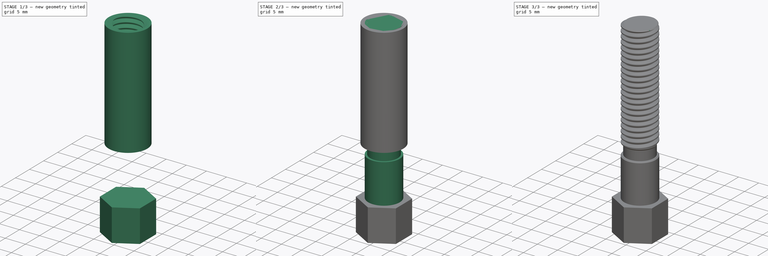
[diagram: build sequence overview — one tinted view per stage of 3, left to right]
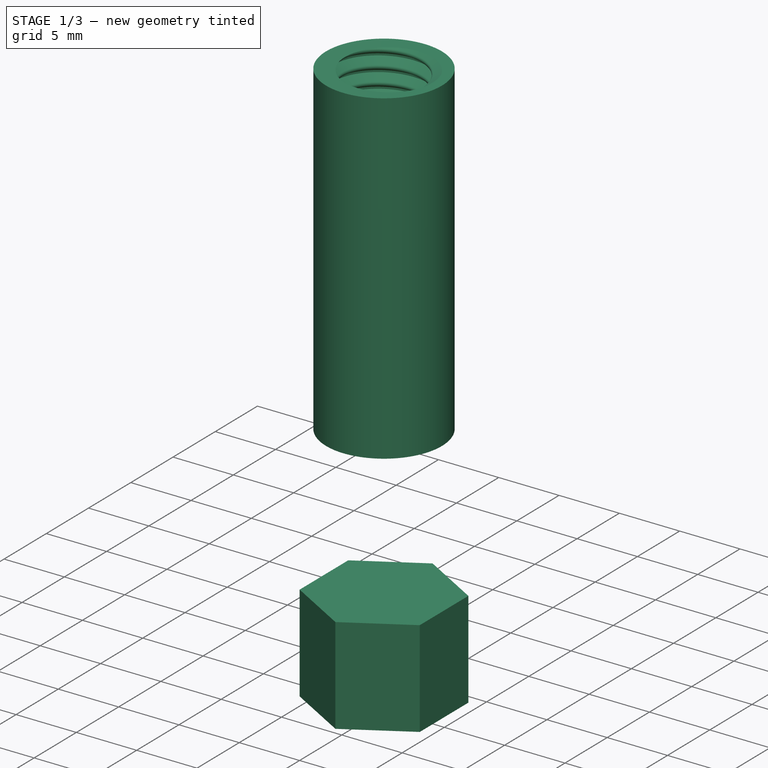
[diagram: stage 1 of 3 — iso view after this stage's code; geometry added in this stage tinted green]
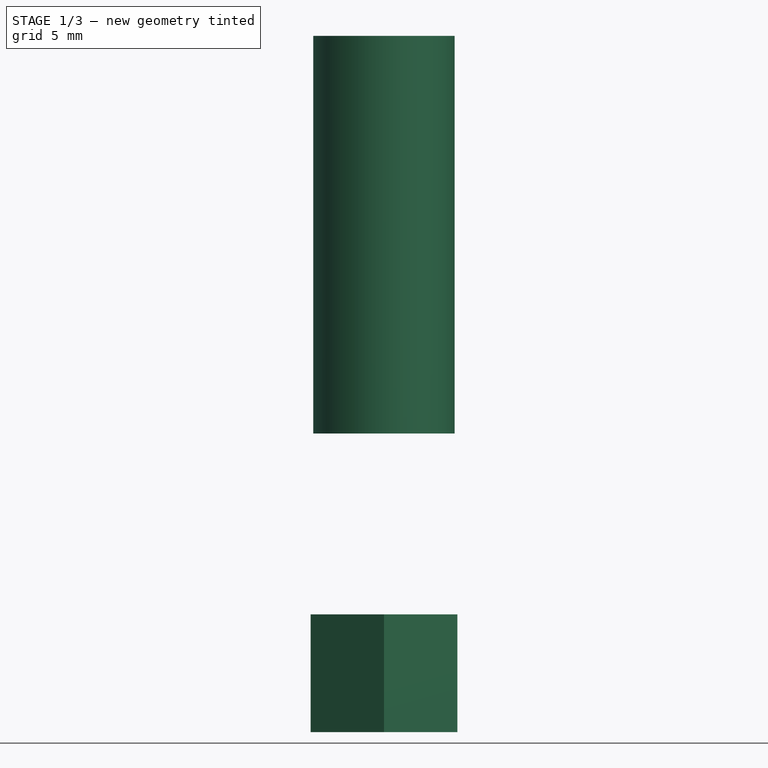
[diagram: stage 1 of 3 — front view after this stage's code; geometry added in this stage tinted green]
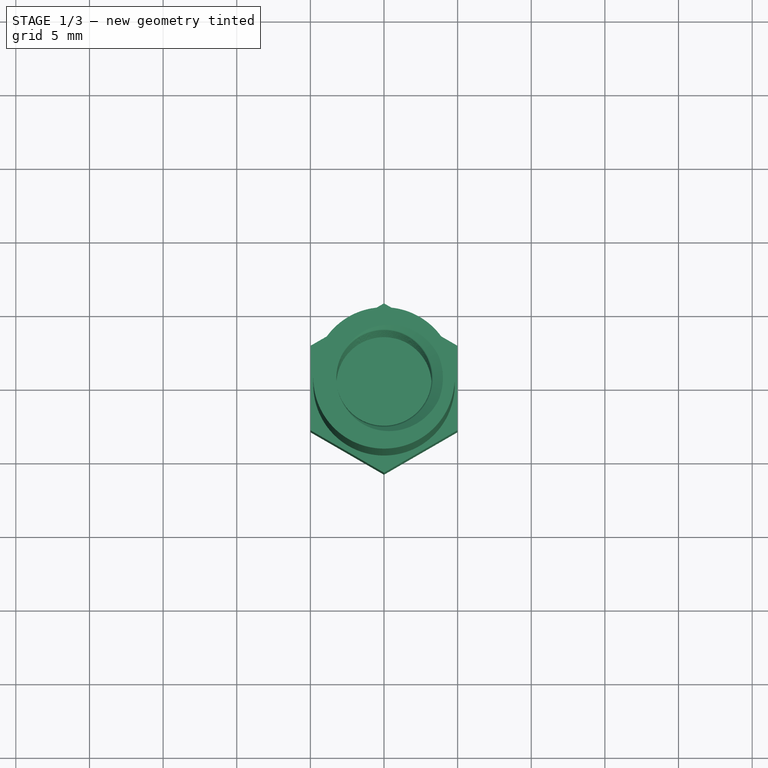
[diagram: stage 1 of 3 — top view after this stage's code; geometry added in this stage tinted green]
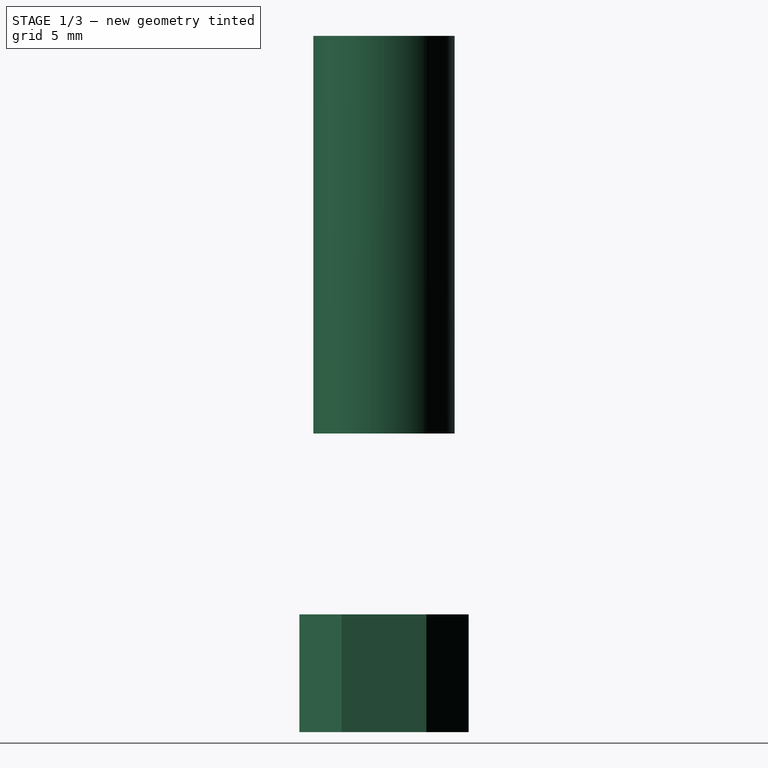
[diagram: stage 1 of 3 — right view after this stage's code; geometry added in this stage tinted green]
FCSTD DOCUMENT  (FreeCAD 1.0R39285 (Git))
Label: HindgeBolt
License: All rights reserved
LicenseURL: https://en.wikipedia.org/wiki/All_rights_reserved
objects: PartDesign::SubShapeBinder×4, PartDesign::Pad×4, Sketcher::SketchObject×1, PartDesign::Chamfer×1, PartDesign::Body×1, Part::FeaturePython×1, Part::Cut×1
note: 24 computed .brp shape members not serialized (recipe doc carries the construction recipe); baked Part::Feature solids carry a one-line shape summary decoded from their .brp

FEATURE [Sketcher::SketchObject] Sketch
  ArcFitTolerance = 1e-06
  FullyConstrained = true
  MakeInternals = false
  sketch-geometry (9):
    g0: LineSegment StartX=0 StartY=5.75 StartZ=0 EndX=-4.97965 EndY=2.875 EndZ=0
    g1: LineSegment StartX=-4.97965 StartY=2.875 StartZ=0 EndX=-4.97965 EndY=-2.875 EndZ=0
    g2: LineSegment StartX=-4.97965 StartY=-2.875 StartZ=0 EndX=0 EndY=-5.75 EndZ=0
    g3: LineSegment StartX=0 StartY=-5.75 StartZ=0 EndX=4.97965 EndY=-2.875 EndZ=0
    g4: LineSegment StartX=4.97965 StartY=-2.875 StartZ=0 EndX=4.97965 EndY=2.875 EndZ=0
    g5: LineSegment StartX=4.97965 StartY=2.875 StartZ=0 EndX=0 EndY=5.75 EndZ=0
    g6: Circle [constr] CenterX=0 CenterY=0 CenterZ=0 NormalX=0 NormalY=0 NormalZ=1 AngleXU=0 Radius=5.75
    g7: Circle CenterX=0 CenterY=0 CenterZ=0 NormalX=0 NormalY=0 NormalZ=1 AngleXU=0 Radius=3.93
    g8: Circle CenterX=0 CenterY=0 CenterZ=0 NormalX=0 NormalY=0 NormalZ=1 AngleXU=0 Radius=3.43
  constraints (20):
    c: Coincident(g0,g1)
    c: Coincident(g1,g2)
    c: Coincident(g2,g3)
    c: Coincident(g3,g4)
    c: Coincident(g4,g5)
    c: Coincident(g5,g0)
    c: Equal(g0, g1-g5) x5
    c: PointOnObject(g0,g6)
    c: PointOnObject(g1,g6)
    c: PointOnObject(g2,g6)
    c: PointOnObject(g3,g6)
    c: PointOnObject(g4,g6)
    c: PointOnObject(g5,g6)
    c: Coincident(g6,g-1)
    c: PointOnObject(g5,g-2)
    c: Diameter(g6) = 11.5
    c: Coincident(g7,g6)
    c: Coincident(g8,g6)
    c: Diameter(g7) = 7.86
    c: Diameter(g8) = 6.86
FEATURE [PartDesign::SubShapeBinder] Binder003
  BindCopyOnChange = 0
  BindMode = 0
  ClaimChildren = false
  Context = -> Body [Binder003.]
  Fuse = false
  MakeFace = true
  OffsetFill = false
  OffsetIntersection = false
  OffsetJoinType = 0
  OffsetOpenResult = false
  PartialLoad = false
  Refine = true
  Relative = true
  _Version = 2
FEATURE [PartDesign::Pad] Pad
  Direction = (0,0,1)
  Length = 8
  Length2 = 10
  Profile = -> Binder003
  Refine = true
  Suppressed = false
  Type = 0
FEATURE [PartDesign::Body] Body  label="Hindge Bolt - Base"
  AllowCompound = false
  Group = -> [Binder003,Pad,Binder,Pad001,Binder004,Pad002,Binder005,Pad003,Chamfer]
  Origin = -> Origin
  Tip = -> Chamfer
FEATURE [Part::FeaturePython] ScrewDie  label="M8x27-ScrewDie"  # WARN: FeaturePython — macro-defined, semantics opaque (R4)
  Diameter = 9
  DiameterCustom = 8
  Invert = false
  LeftHanded = false
  Length = 27
  MatchOuter = false
  OffsetAngle = 0
  PitchCustom = 1
  Placement = pos=(0,0,47.28) rot=(0,0,1;0rad)
  Thread = true
  Type = 0
  expr: .Placement.Base.z = 8 + 9.78 + 2.5 + 27
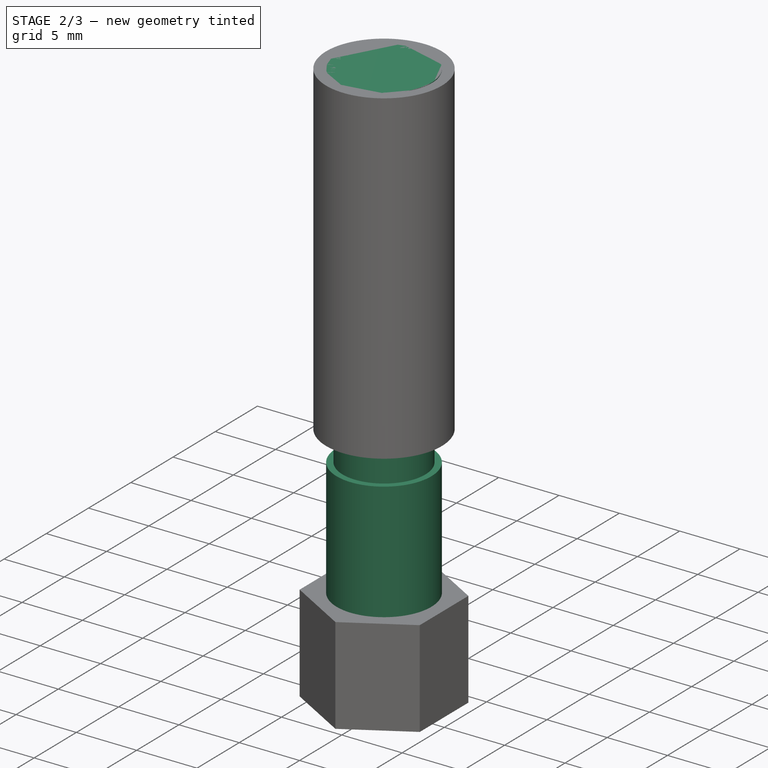
[diagram: stage 2 of 3 — iso view after this stage's code; geometry added in this stage tinted green]
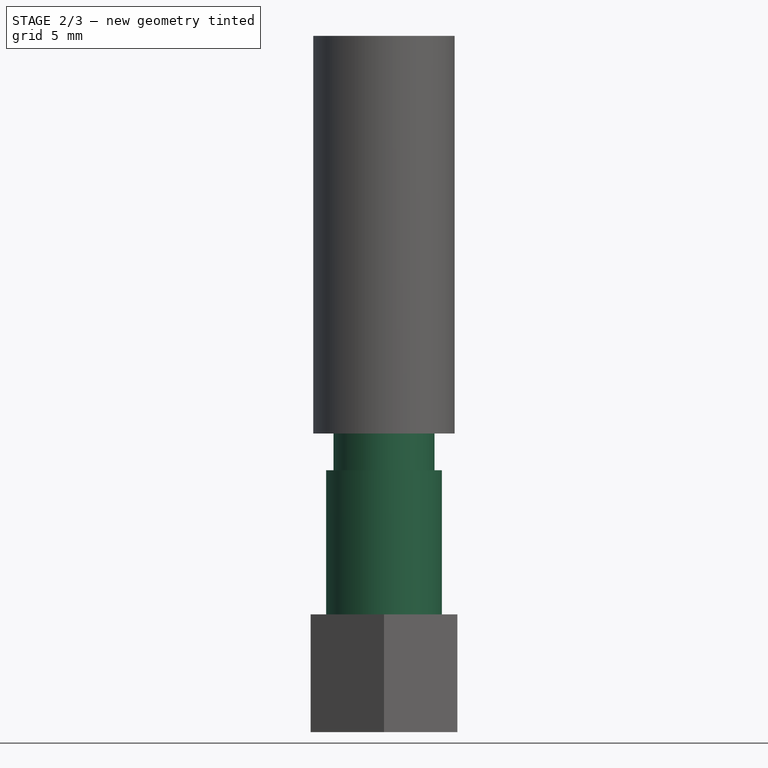
[diagram: stage 2 of 3 — front view after this stage's code; geometry added in this stage tinted green]
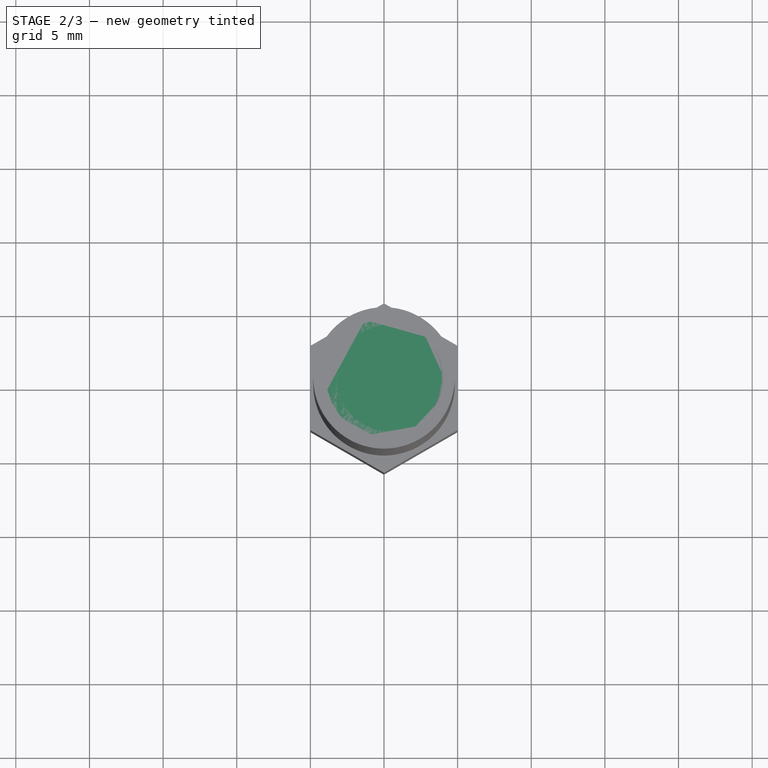
[diagram: stage 2 of 3 — top view after this stage's code; geometry added in this stage tinted green]
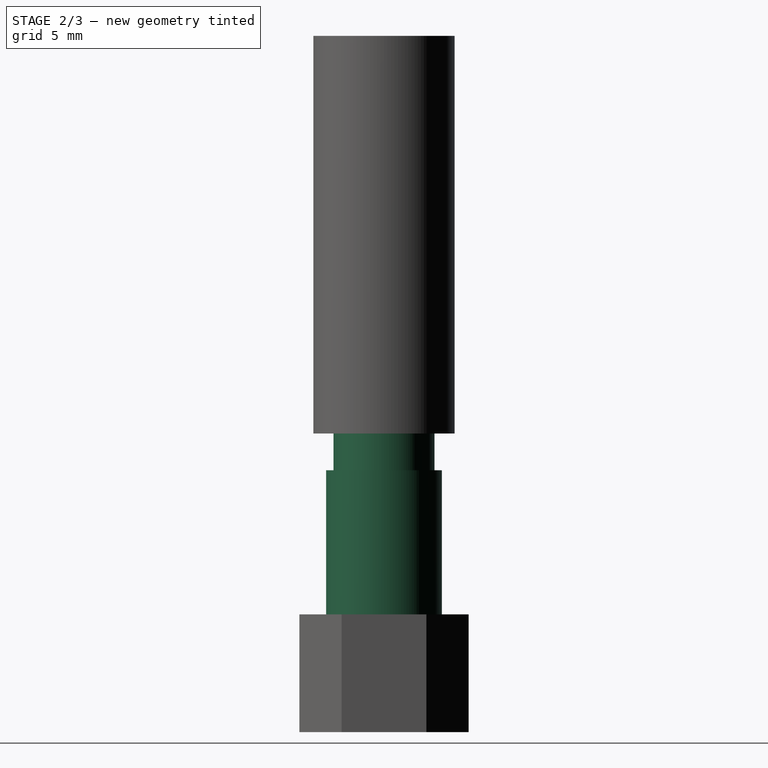
[diagram: stage 2 of 3 — right view after this stage's code; geometry added in this stage tinted green]
FEATURE [PartDesign::SubShapeBinder] Binder
  BindCopyOnChange = 0
  BindMode = 0
  ClaimChildren = false
  Context = -> Body [Binder.]
  Fuse = false
  MakeFace = true
  OffsetFill = false
  OffsetIntersection = false
  OffsetJoinType = 0
  OffsetOpenResult = false
  PartialLoad = false
  Placement = pos=(0,0,8) rot=(0,0,1;0rad)
  Refine = true
  Relative = true
  Support = -> [Sketch[Edge7]]
  _Version = 2
FEATURE [PartDesign::Pad] Pad001
  BaseFeature = -> Pad
  Direction = (0,0,1)
  Length = 9.78
  Length2 = 10
  Profile = -> Binder
  Refine = true
  Suppressed = false
  Type = 0
FEATURE [PartDesign::SubShapeBinder] Binder004
  BindCopyOnChange = 0
  BindMode = 0
  ClaimChildren = false
  Context = -> Body [Binder004.]
  Fuse = false
  MakeFace = true
  OffsetFill = false
  OffsetIntersection = false
  OffsetJoinType = 0
  OffsetOpenResult = false
  PartialLoad = false
  Placement = pos=(0,0,17.78) rot=(0,0,1;0rad)
  Refine = true
  Relative = true
  Support = -> [Sketch[Edge8]]
  _Version = 2
  expr: .Placement.Base.z = 9.78 + 8
FEATURE [PartDesign::Pad] Pad002
  BaseFeature = -> Pad001
  Direction = (0,0,1)
  Length = 2.5
  Length2 = 10
  Profile = -> Binder004
  Refine = true
  Suppressed = false
  Type = 0
FEATURE [PartDesign::SubShapeBinder] Binder005
  BindCopyOnChange = 0
  BindMode = 0
  ClaimChildren = false
  Context = -> Body [Binder005.]
  Fuse = false
  MakeFace = true
  OffsetFill = false
  OffsetIntersection = false
  OffsetJoinType = 0
  OffsetOpenResult = false
  PartialLoad = false
  Placement = pos=(0,0,20.28) rot=(0,0,1;0rad)
  Refine = true
  Relative = true
  Support = -> [Sketch[Edge7]]
  _Version = 2
  expr: .Placement.Base.z = 9.78 + 8 + 2.5
FEATURE [PartDesign::Pad] Pad003
  BaseFeature = -> Pad002
  Direction = (0,0,1)
  Length = 27
  Length2 = 10
  Profile = -> Binder005
  Refine = true
  Suppressed = false
  Type = 0
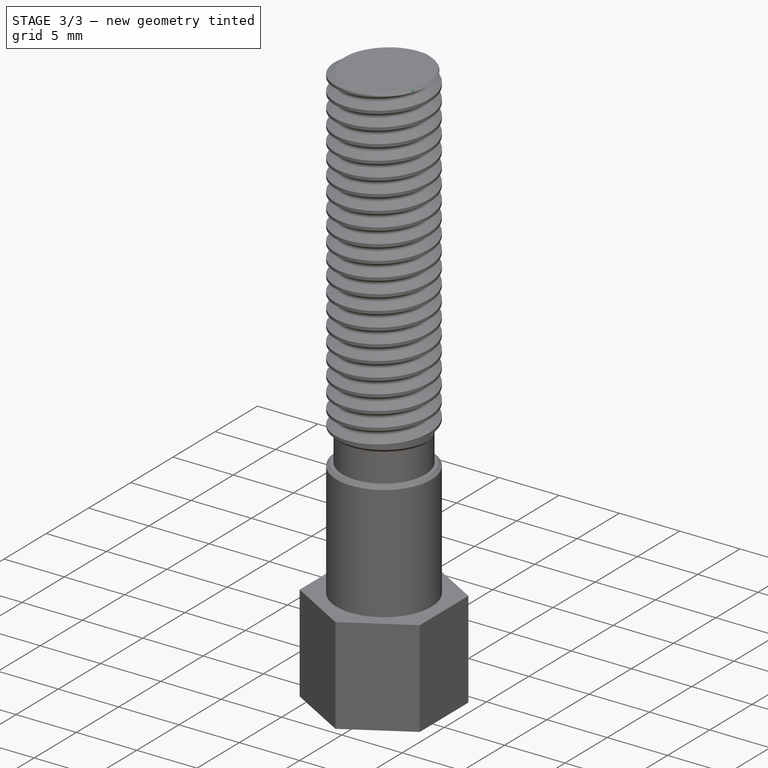
[diagram: stage 3 of 3 — iso view after this stage's code; geometry added in this stage tinted green]
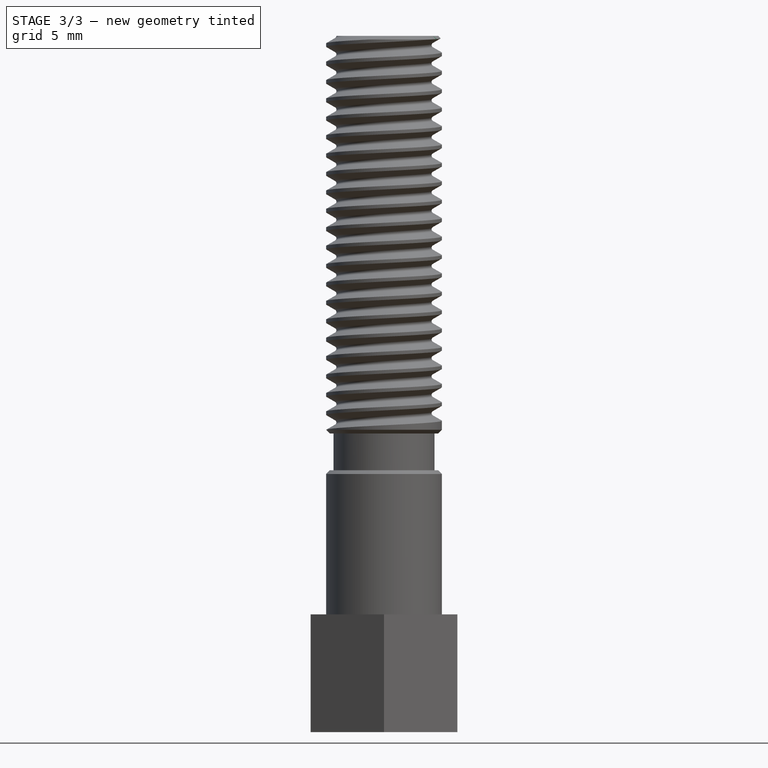
[diagram: stage 3 of 3 — front view after this stage's code; geometry added in this stage tinted green]
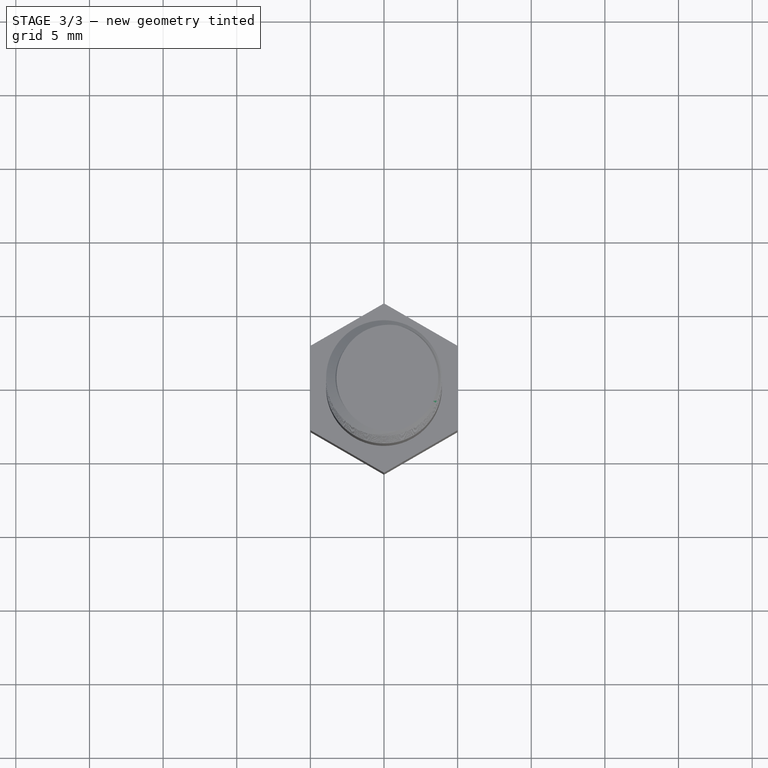
[diagram: stage 3 of 3 — top view after this stage's code; geometry added in this stage tinted green]
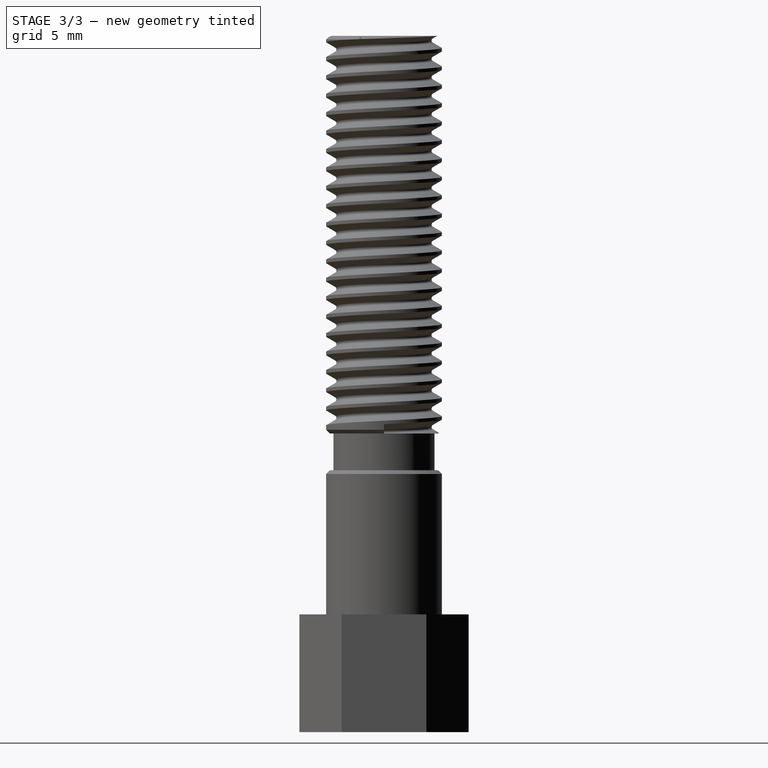
[diagram: stage 3 of 3 — right view after this stage's code; geometry added in this stage tinted green]
FEATURE [PartDesign::Chamfer] Chamfer
  Angle = 45
  Base = -> Pad003 [Edge27,Edge25,Edge21]
  BaseFeature = -> Pad003
  ChamferType = 0
  FlipDirection = false
  Refine = true
  Size = 0.25
  Size2 = 1
  SupportTransform = false
  Suppressed = false
  UseAllEdges = false
FEATURE [Part::Cut] Cut  label="Hindge Bolt"
  Base = -> Body
  Refine = true
  Tool = -> ScrewDie
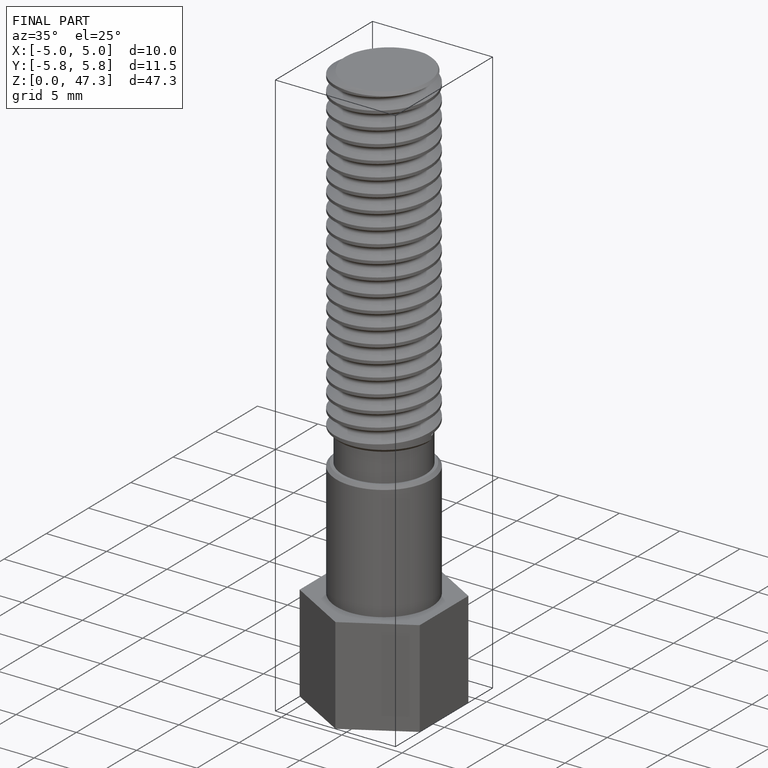
[diagram: finished part — iso view with bounding-box wireframe]
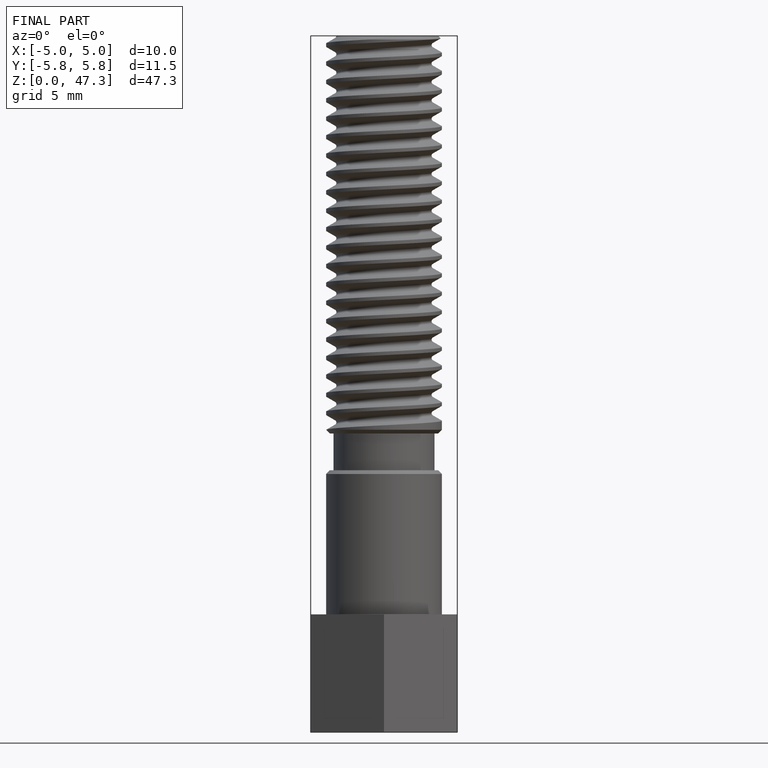
[diagram: finished part — front view with bounding-box wireframe]
